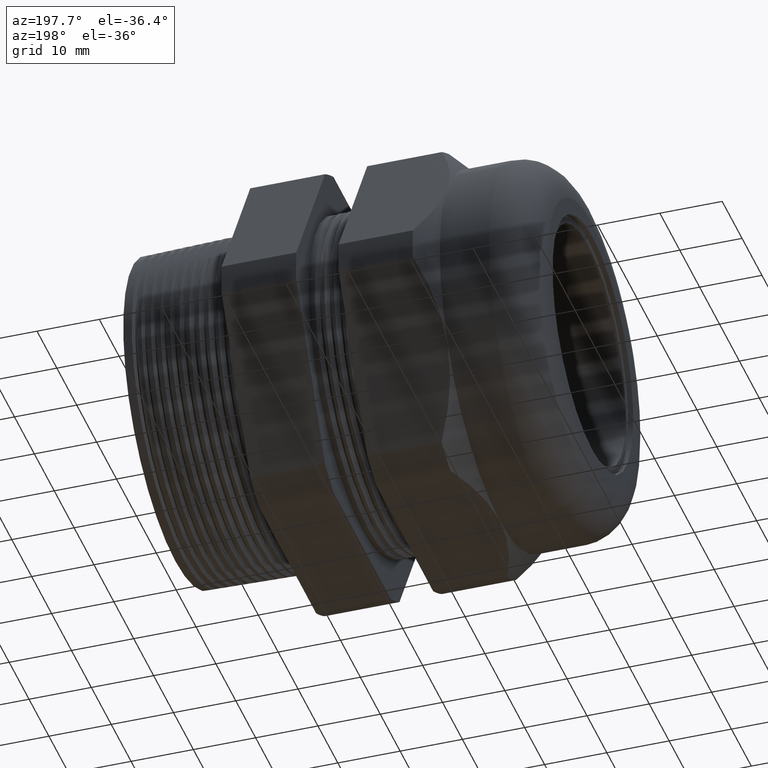
[diagram: clean part render]
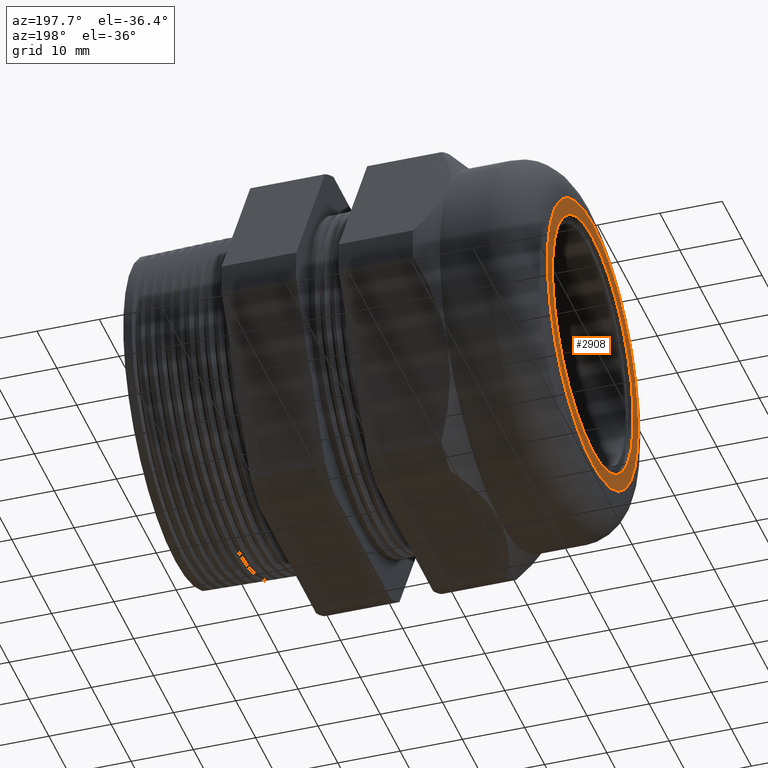
[diagram: same view with one face highlighted and labeled with its STEP entity id]
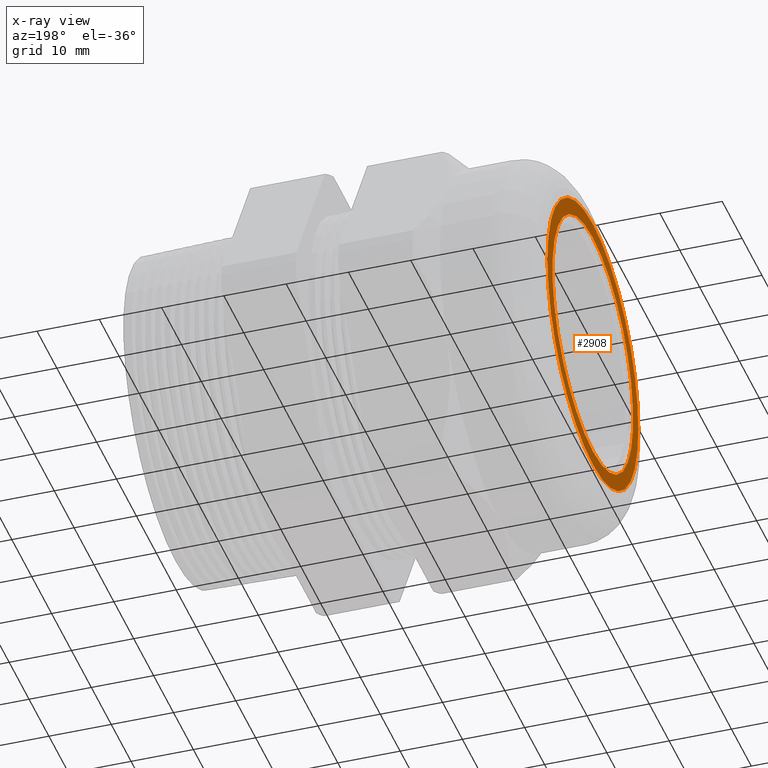
[diagram: x-ray of the same camera — body ghosted, the highlighted face saturated]
A machine part, auxiliary view. The second image highlights one B-rep face of the part: STEP entity #2908.
The next image is the same camera in x-ray: the body ghosted, the highlighted face saturated — about 0% of this face is hidden behind the body in this view.
In plain terms, the highlighted planar face has unit normal (-1, 0, 0).
Its self-contained STEP definition (entity closure, byte-faithful):
#395 = VERTEX_POINT ( 'NONE', #1266 ) ;
#397 = EDGE_CURVE ( 'NONE', #398, #395, #1264, .T. ) ;
#398 = VERTEX_POINT ( 'NONE', #1259 ) ;
#1259 = CARTESIAN_POINT ( 'NONE',  ( -2.239999999999999800, 0.0000000000000000000, 0.8999999999999999100 ) ) ;
#1260 = DIRECTION ( 'NONE',  ( 0.0000000000000000000, 0.0000000000000000000, 1.000000000000000000 ) ) ;
#1261 = DIRECTION ( 'NONE',  ( -1.000000000000000000, 0.0000000000000000000, 0.0000000000000000000 ) ) ;
#1262 = CARTESIAN_POINT ( 'NONE',  ( -2.239999999999999800, 0.0000000000000000000, 0.0000000000000000000 ) ) ;
#1263 = AXIS2_PLACEMENT_3D ( 'NONE', #1262, #1261, #1260 ) ;
#1264 = CIRCLE ( 'NONE', #1263, 0.8999999999999999100 ) ;
#1266 = CARTESIAN_POINT ( 'NONE',  ( -2.239999999999999800, 1.273632671113247200E-016, -0.8999999999999999100 ) ) ;
#2128 = DIRECTION ( 'NONE',  ( -1.000000000000000000, 0.0000000000000000000, 0.0000000000000000000 ) ) ;
#2129 = CARTESIAN_POINT ( 'NONE',  ( -2.239999999999999800, 0.0000000000000000000, 0.0000000000000000000 ) ) ;
#2130 = AXIS2_PLACEMENT_3D ( 'NONE', #2129, #2128, #2192 ) ;
#2131 = CIRCLE ( 'NONE', #2130, 0.8999999999999999100 ) ;
#2175 = DIRECTION ( 'NONE',  ( 0.0000000000000000000, 0.0000000000000000000, 1.000000000000000000 ) ) ;
#2176 = DIRECTION ( 'NONE',  ( -1.000000000000000000, 0.0000000000000000000, 0.0000000000000000000 ) ) ;
#2177 = CARTESIAN_POINT ( 'NONE',  ( -2.239999999999999800, 1.179999999999999900, 0.0000000000000000000 ) ) ;
#2178 = AXIS2_PLACEMENT_3D ( 'NONE', #2177, #2176, #2175 ) ;
#2179 = PLANE ( 'NONE',  #2178 ) ;
#2180 = FACE_BOUND ( 'NONE', #2901, .T. ) ;
#2181 = FACE_OUTER_BOUND ( 'NONE', #2900, .T. ) ;
#2192 = DIRECTION ( 'NONE',  ( 0.0000000000000000000, 0.0000000000000000000, 1.000000000000000000 ) ) ;
#2216 = DIRECTION ( 'NONE',  ( 0.0000000000000000000, 0.0000000000000000000, -1.000000000000000000 ) ) ;
#2217 = DIRECTION ( 'NONE',  ( 1.000000000000000000, 0.0000000000000000000, 0.0000000000000000000 ) ) ;
#2218 = CARTESIAN_POINT ( 'NONE',  ( -2.239999999999999800, 0.0000000000000000000, 0.0000000000000000000 ) ) ;
#2219 = AXIS2_PLACEMENT_3D ( 'NONE', #2218, #2217, #2216 ) ;
#2220 = CIRCLE ( 'NONE', #2219, 0.7987499999999999600 ) ;
#2896 = ORIENTED_EDGE ( 'NONE', *, *, #397, .T. ) ;
#2897 = ORIENTED_EDGE ( 'NONE', *, *, #2902, .T. ) ;
#2898 = ORIENTED_EDGE ( 'NONE', *, *, #4069, .T. ) ;
#2899 = ORIENTED_EDGE ( 'NONE', *, *, #2919, .T. ) ;
#2900 = EDGE_LOOP ( 'NONE', ( #2896, #2897 ) ) ;
#2901 = EDGE_LOOP ( 'NONE', ( #2899, #2898 ) ) ;
#2902 = EDGE_CURVE ( 'NONE', #395, #398, #2131, .T. ) ;
#2908 = ADVANCED_FACE ( 'NONE', ( #2181, #2180 ), #2179, .T. ) ;
#2919 = EDGE_CURVE ( 'NONE', #4071, #4083, #2220, .T. ) ;
#3504 = CARTESIAN_POINT ( 'NONE',  ( -2.239999999999999800, 9.781866308189482700E-017, 0.7987499999999999600 ) ) ;
#3520 = CARTESIAN_POINT ( 'NONE',  ( -2.239999999999999800, 0.0000000000000000000, -0.7987499999999999600 ) ) ;
#3522 = DIRECTION ( 'NONE',  ( 0.0000000000000000000, 0.0000000000000000000, -1.000000000000000000 ) ) ;
#3523 = DIRECTION ( 'NONE',  ( 1.000000000000000000, 0.0000000000000000000, 0.0000000000000000000 ) ) ;
#3524 = CARTESIAN_POINT ( 'NONE',  ( -2.239999999999999800, 0.0000000000000000000, 0.0000000000000000000 ) ) ;
#3525 = AXIS2_PLACEMENT_3D ( 'NONE', #3524, #3523, #3522 ) ;
#3526 = CIRCLE ( 'NONE', #3525, 0.7987499999999999600 ) ;
#4069 = EDGE_CURVE ( 'NONE', #4083, #4071, #3526, .T. ) ;
#4071 = VERTEX_POINT ( 'NONE', #3520 ) ;
#4083 = VERTEX_POINT ( 'NONE', #3504 ) ;